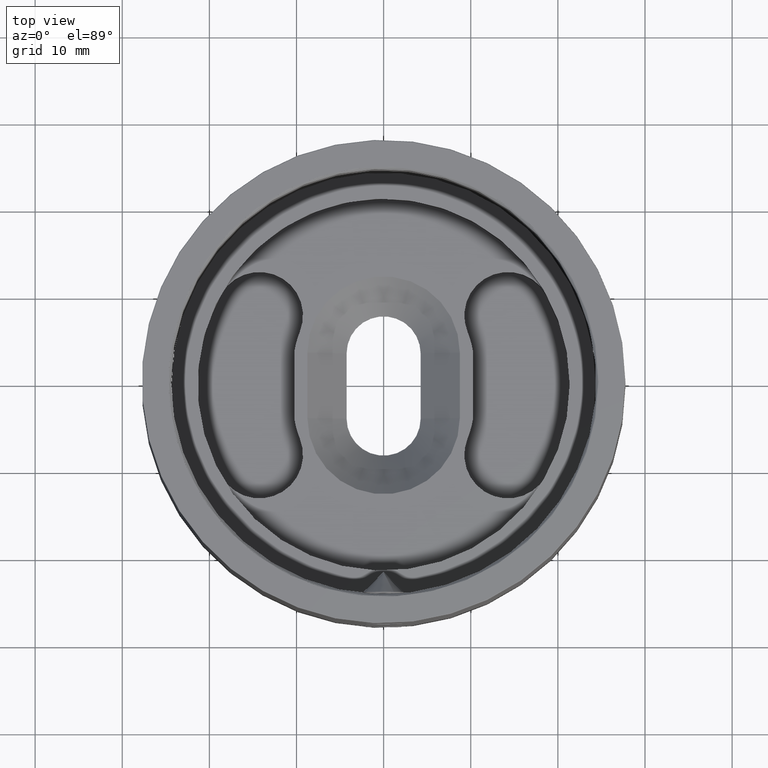
[diagram: clean part render]
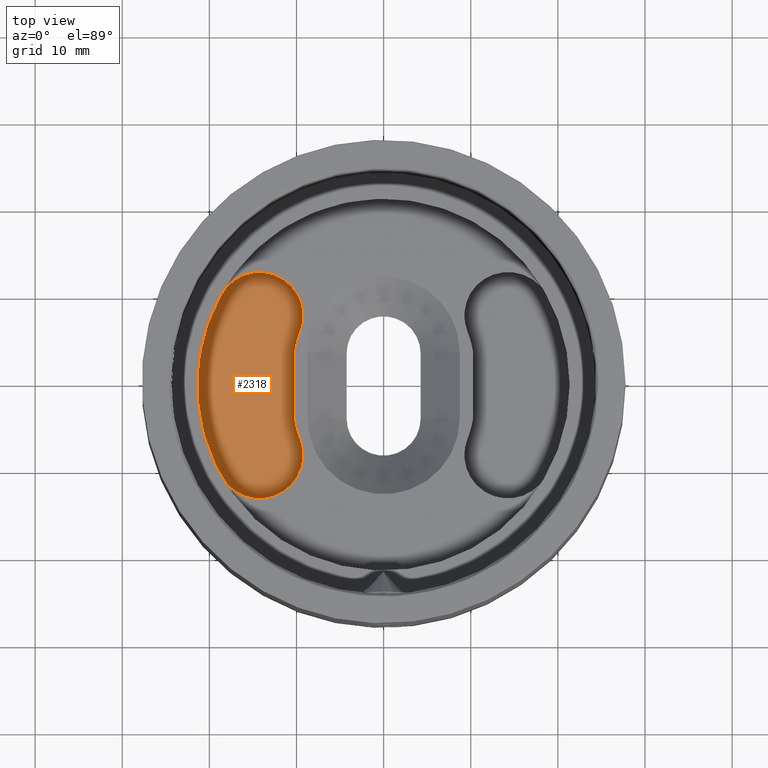
[diagram: same view with one face highlighted and labeled with its STEP entity id]
A machine part, top view. The second image highlights one B-rep face of the part: STEP entity #2318.
In plain terms, the highlighted planar face has unit normal (0, 0, 1).
Its self-contained STEP definition (entity closure, byte-faithful):
#34 = CARTESIAN_POINT ( 'NONE',  ( -14.25911988868878666, -7.999999999999998224, 2.600000000000000533 ) ) ;
#330 = PLANE ( 'NONE',  #13702 ) ;
#498 = DIRECTION ( 'NONE',  ( -0.000000000000000000, 0.000000000000000000, 1.000000000000000000 ) ) ;
#818 = CIRCLE ( 'NONE', #6964, 5.000000000000002665 ) ;
#1536 = EDGE_CURVE ( 'NONE', #10332, #11619, #818, .T. ) ;
#1610 = VERTEX_POINT ( 'NONE', #5805 ) ;
#1734 = DIRECTION ( 'NONE',  ( 1.000000000000000000, 0.000000000000000000, 0.000000000000000000 ) ) ;
#1919 = AXIS2_PLACEMENT_3D ( 'NONE', #34, #7755, #12915 ) ;
#1994 = DIRECTION ( 'NONE',  ( 0.000000000000000000, 1.000000000000000000, -0.000000000000000000 ) ) ;
#2062 = AXIS2_PLACEMENT_3D ( 'NONE', #12030, #13216, #1734 ) ;
#2318 = ADVANCED_FACE ( 'NONE', ( #15630 ), #330, .T. ) ;
#3024 = CIRCLE ( 'NONE', #2062, 21.35000000000000497 ) ;
#3506 = CIRCLE ( 'NONE', #13995, 10.37998184837932847 ) ;
#3676 = VECTOR ( 'NONE', #1994, 1000.000000000000000 ) ;
#4119 = CARTESIAN_POINT ( 'NONE',  ( 0.000000000000000000, 0.000000000000000000, 2.600000000000000533 ) ) ;
#4328 = CARTESIAN_POINT ( 'NONE',  ( -10.24999999999999289, 0.000000000000000000, 2.600000000000000533 ) ) ;
#4584 = ORIENTED_EDGE ( 'NONE', *, *, #14146, .T. ) ;
#5418 = CARTESIAN_POINT ( 'NONE',  ( -14.25911988868878666, 7.999999999999998224, 2.600000000000000533 ) ) ;
#5469 = DIRECTION ( 'NONE',  ( -0.000000000000000000, 0.000000000000000000, 1.000000000000000000 ) ) ;
#5470 = DIRECTION ( 'NONE',  ( 1.000000000000000000, 0.000000000000000000, 0.000000000000000000 ) ) ;
#5761 = CIRCLE ( 'NONE', #10171, 10.37998184837933202 ) ;
#5805 = CARTESIAN_POINT ( 'NONE',  ( -18.61970701061196820, -10.44648318042812463, 2.600000000000000533 ) ) ;
#6664 = CARTESIAN_POINT ( 'NONE',  ( 2.584938643856233729E-23, 2.236204231890449812, 2.600000000000000533 ) ) ;
#6723 = DIRECTION ( 'NONE',  ( 1.000000000000000000, 0.000000000000000000, 0.000000000000000000 ) ) ;
#6766 = DIRECTION ( 'NONE',  ( 1.000000000000000000, 0.000000000000000000, 0.000000000000000000 ) ) ;
#6964 = AXIS2_PLACEMENT_3D ( 'NONE', #5418, #498, #5470 ) ;
#7269 = EDGE_CURVE ( 'NONE', #10332, #10598, #5761, .T. ) ;
#7311 = LINE ( 'NONE', #4328, #3676 ) ;
#7563 = EDGE_CURVE ( 'NONE', #8031, #1610, #14215, .T. ) ;
#7755 = DIRECTION ( 'NONE',  ( 0.000000000000000000, -0.000000000000000000, -1.000000000000000000 ) ) ;
#8031 = VERTEX_POINT ( 'NONE', #11301 ) ;
#8065 = CARTESIAN_POINT ( 'NONE',  ( -10.24999999999999289, -3.873739933084319187, 2.600000000000000533 ) ) ;
#8591 = ORIENTED_EDGE ( 'NONE', *, *, #7563, .F. ) ;
#9199 = EDGE_LOOP ( 'NONE', ( #13843, #9226, #4584, #8591, #10710, #14675 ) ) ;
#9226 = ORIENTED_EDGE ( 'NONE', *, *, #1536, .T. ) ;
#10171 = AXIS2_PLACEMENT_3D ( 'NONE', #6664, #10539, #6766 ) ;
#10332 = VERTEX_POINT ( 'NONE', #12450 ) ;
#10539 = DIRECTION ( 'NONE',  ( -0.000000000000000000, 0.000000000000000000, 1.000000000000000000 ) ) ;
#10598 = VERTEX_POINT ( 'NONE', #12991 ) ;
#10662 = EDGE_CURVE ( 'NONE', #12292, #8031, #3506, .T. ) ;
#10710 = ORIENTED_EDGE ( 'NONE', *, *, #10662, .F. ) ;
#11126 = DIRECTION ( 'NONE',  ( 1.000000000000000000, 0.000000000000000000, 0.000000000000000000 ) ) ;
#11301 = CARTESIAN_POINT ( 'NONE',  ( -9.623509772480705493, -6.126202025161386899, 2.600000000000000533 ) ) ;
#11619 = VERTEX_POINT ( 'NONE', #12549 ) ;
#11843 = EDGE_CURVE ( 'NONE', #12292, #10598, #7311, .T. ) ;
#12023 = CARTESIAN_POINT ( 'NONE',  ( 6.462351617058439730E-24, -2.236204231890456917, 2.600000000000000533 ) ) ;
#12030 = CARTESIAN_POINT ( 'NONE',  ( 0.000000000000000000, 0.000000000000000000, 2.600000000000000533 ) ) ;
#12292 = VERTEX_POINT ( 'NONE', #8065 ) ;
#12450 = CARTESIAN_POINT ( 'NONE',  ( -9.623509772480700164, 6.126202025161387787, 2.600000000000000533 ) ) ;
#12549 = CARTESIAN_POINT ( 'NONE',  ( -18.61970701061196110, 10.44648318042813351, 2.600000000000000533 ) ) ;
#12915 = DIRECTION ( 'NONE',  ( 1.000000000000000000, 0.000000000000000000, 0.000000000000000000 ) ) ;
#12991 = CARTESIAN_POINT ( 'NONE',  ( -10.24999999999999289, 3.873739933084323628, 2.600000000000000533 ) ) ;
#13216 = DIRECTION ( 'NONE',  ( -0.000000000000000000, 0.000000000000000000, 1.000000000000000000 ) ) ;
#13702 = AXIS2_PLACEMENT_3D ( 'NONE', #4119, #5469, #6723 ) ;
#13843 = ORIENTED_EDGE ( 'NONE', *, *, #7269, .F. ) ;
#13995 = AXIS2_PLACEMENT_3D ( 'NONE', #12023, #14951, #11126 ) ;
#14146 = EDGE_CURVE ( 'NONE', #11619, #1610, #3024, .T. ) ;
#14215 = CIRCLE ( 'NONE', #1919, 5.000000000000002665 ) ;
#14675 = ORIENTED_EDGE ( 'NONE', *, *, #11843, .T. ) ;
#14951 = DIRECTION ( 'NONE',  ( -0.000000000000000000, 0.000000000000000000, 1.000000000000000000 ) ) ;
#15630 = FACE_OUTER_BOUND ( 'NONE', #9199, .T. ) ;